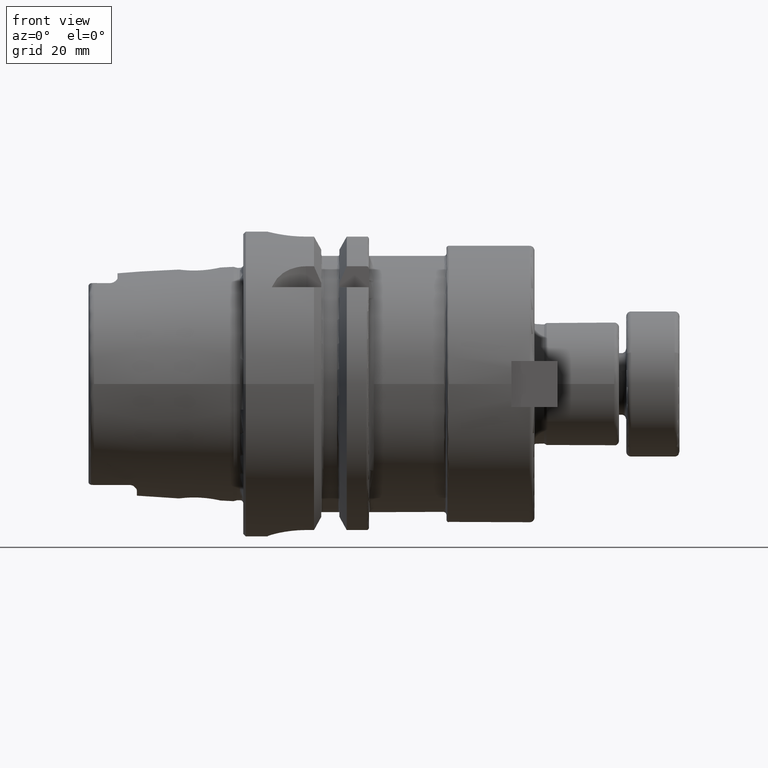
[diagram: clean part render]
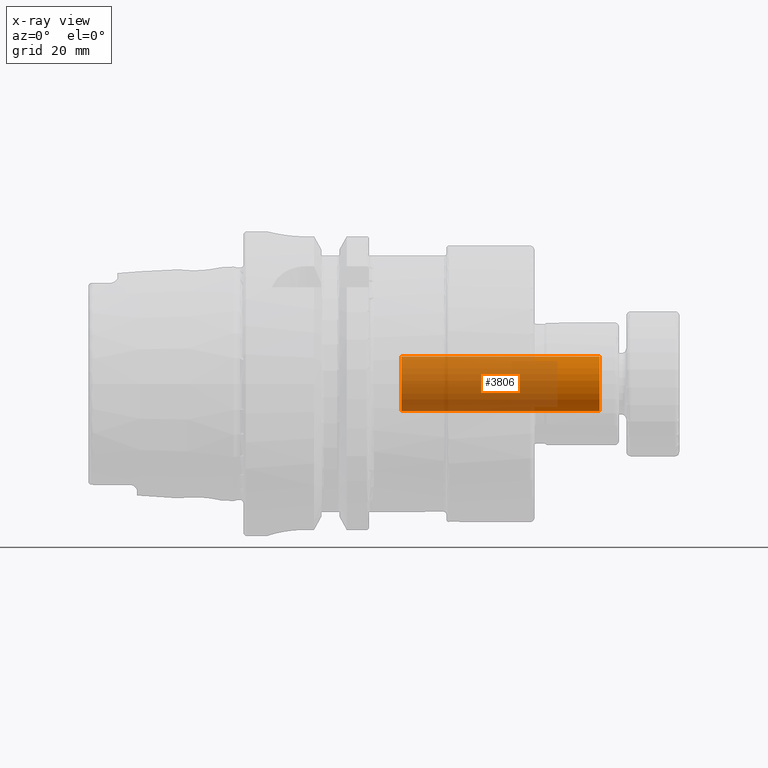
[diagram: x-ray — body ghosted, one internal face saturated and labeled with its STEP entity id]
A machine part, front view, then the same camera in x-ray: the body is ghosted and one INTERNAL B-rep face — a face not visible from any outside direction — is saturated and labeled: STEP entity #3806.
In plain terms, the highlighted cylindrical surface (bore or boss wall) has radius 5.6642 mm, axis along (1, 0, 0).
Its self-contained STEP definition (entity closure, byte-faithful):
#654=CYLINDRICAL_SURFACE('',#4212,5.6642);
#728=CIRCLE('',#4209,5.6642);
#729=CIRCLE('',#4211,5.6642);
#995=FACE_OUTER_BOUND('',#1203,.T.);
#1203=EDGE_LOOP('',(#2815,#2816,#2817,#2818));
#1420=LINE('',#6030,#1621);
#1621=VECTOR('',#4809,5.6642);
#1904=VERTEX_POINT('',#6023);
#1905=VERTEX_POINT('',#6027);
#2252=EDGE_CURVE('',#1904,#1904,#728,.T.);
#2254=EDGE_CURVE('',#1905,#1905,#729,.T.);
#2255=EDGE_CURVE('',#1905,#1904,#1420,.T.);
#2815=ORIENTED_EDGE('',*,*,#2254,.T.);
#2816=ORIENTED_EDGE('',*,*,#2255,.T.);
#2817=ORIENTED_EDGE('',*,*,#2252,.F.);
#2818=ORIENTED_EDGE('',*,*,#2255,.F.);
#3806=ADVANCED_FACE('',(#995),#654,.F.);
#4209=AXIS2_PLACEMENT_3D('',#6024,#4800,#4801);
#4211=AXIS2_PLACEMENT_3D('',#6028,#4805,#4806);
#4212=AXIS2_PLACEMENT_3D('',#6029,#4807,#4808);
#4800=DIRECTION('center_axis',(1.,0.,0.));
#4801=DIRECTION('ref_axis',(0.,0.,-1.));
#4805=DIRECTION('center_axis',(1.,0.,0.));
#4806=DIRECTION('ref_axis',(0.,0.,-1.));
#4807=DIRECTION('center_axis',(1.,0.,0.));
#4808=DIRECTION('ref_axis',(0.,0.,-1.));
#4809=DIRECTION('',(-1.,0.,0.));
#6023=CARTESIAN_POINT('',(32.68,-6.93664439973044E-16,5.6642));
#6024=CARTESIAN_POINT('Origin',(32.68,0.,0.));
#6027=CARTESIAN_POINT('',(73.68,-6.93664439973044E-16,5.6642));
#6028=CARTESIAN_POINT('Origin',(73.68,0.,0.));
#6029=CARTESIAN_POINT('Origin',(55.18,0.,0.));
#6030=CARTESIAN_POINT('',(55.18,-6.93664439973044E-16,5.6642));